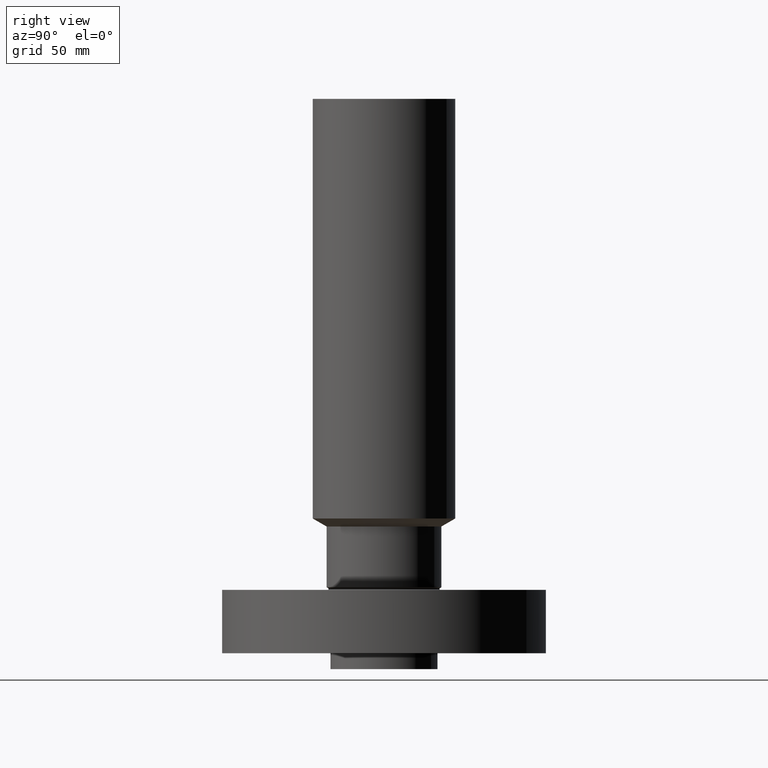
[diagram: clean part render]
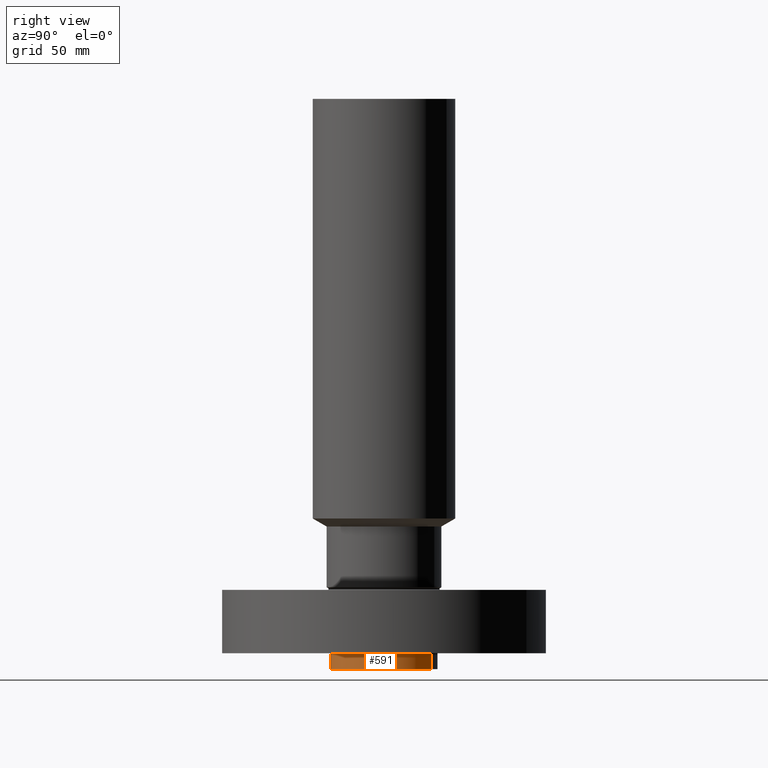
[diagram: same view with one face highlighted and labeled with its STEP entity id]
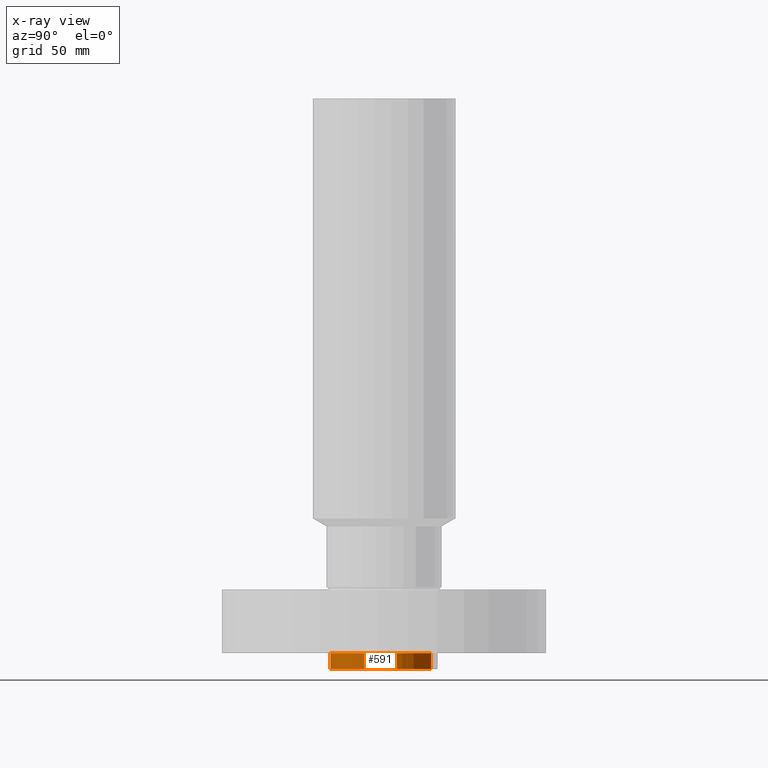
[diagram: x-ray of the same camera — body ghosted, the highlighted face saturated]
A machine part, right view. The second image highlights one B-rep face of the part: STEP entity #591.
The next image is the same camera in x-ray: the body ghosted, the highlighted face saturated — about 0% of this face is hidden behind the body in this view.
In plain terms, the highlighted cylindrical surface (partial cylindrical patch) has radius 21.463 mm, axis along (0, 0, -1).
Its self-contained STEP definition (entity closure, byte-faithful):
#109=AXIS2_PLACEMENT_3D('Circle Axis2P3D',#107,#108,$) ;
#551=AXIS2_PLACEMENT_3D('Circle Axis2P3D',#549,#550,$) ;
#566=AXIS2_PLACEMENT_3D('Cylinder Axis2P3D',#563,#564,#565) ;
#107=CARTESIAN_POINT('Axis2P3D Location',(0.,0.,0.)) ;
#111=CARTESIAN_POINT('Vertex',(0.405114580122,0.7415572648,0.)) ;
#113=CARTESIAN_POINT('Vertex',(-0.405114580122,-0.7415572648,0.)) ;
#544=CARTESIAN_POINT('Vertex',(-0.405114580122,-0.7415572648,-0.250000000001)) ;
#546=CARTESIAN_POINT('Vertex',(0.405114580122,0.7415572648,-0.250000000001)) ;
#549=CARTESIAN_POINT('Axis2P3D Location',(0.,0.,-0.250000000001)) ;
#563=CARTESIAN_POINT('Axis2P3D Location',(0.,0.,4.25000000002)) ;
#568=CARTESIAN_POINT('Line Origine',(-0.405114580122,-0.7415572648,-0.125000000001)) ;
#573=CARTESIAN_POINT('Line Origine',(0.405114580122,0.7415572648,-0.125000000001)) ;
#108=DIRECTION('Axis2P3D Direction',(0.,0.,-0.0393700787402)) ;
#550=DIRECTION('Axis2P3D Direction',(0.,0.,-0.0393700787402)) ;
#564=DIRECTION('Axis2P3D Direction',(0.,0.,-0.0393700787402)) ;
#565=DIRECTION('Axis2P3D XDirection',(0.0188750212049,0.0345504945626,0.)) ;
#569=DIRECTION('Vector Direction',(0.,0.,-0.0393700787402)) ;
#574=DIRECTION('Vector Direction',(0.,0.,-0.0393700787402)) ;
#570=VECTOR('Line Direction',#569,0.0393700787402) ;
#575=VECTOR('Line Direction',#574,0.0393700787402) ;
#586=ORIENTED_EDGE('',*,*,#553,.F.) ;
#587=ORIENTED_EDGE('',*,*,#577,.T.) ;
#588=ORIENTED_EDGE('',*,*,#115,.T.) ;
#589=ORIENTED_EDGE('',*,*,#572,.F.) ;
#591=ADVANCED_FACE('PartBody',(#590),#567,.T.) ;
#110=CIRCLE('generated circle',#109,0.845000000003) ;
#552=CIRCLE('generated circle',#551,0.845000000003) ;
#567=CYLINDRICAL_SURFACE('generated cylinder',#566,0.845000000003) ;
#115=EDGE_CURVE('',#112,#114,#110,.T.) ;
#553=EDGE_CURVE('',#547,#545,#552,.T.) ;
#572=EDGE_CURVE('',#545,#114,#571,.F.) ;
#577=EDGE_CURVE('',#547,#112,#576,.F.) ;
#585=EDGE_LOOP('',(#586,#587,#588,#589)) ;
#590=FACE_OUTER_BOUND('',#585,.T.) ;
#571=LINE('Line',#568,#570) ;
#576=LINE('Line',#573,#575) ;
#112=VERTEX_POINT('',#111) ;
#114=VERTEX_POINT('',#113) ;
#545=VERTEX_POINT('',#544) ;
#547=VERTEX_POINT('',#546) ;